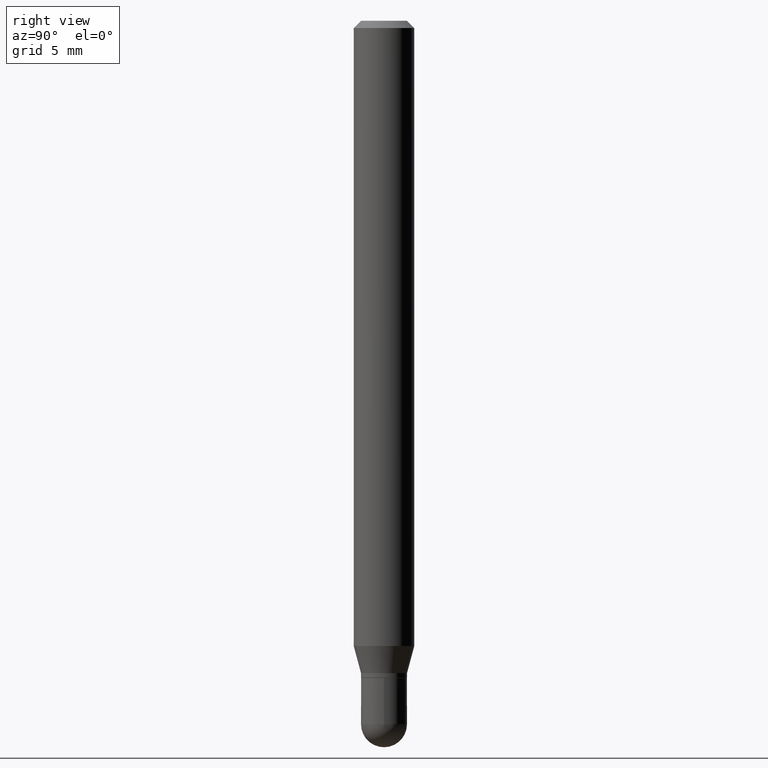
[diagram: clean part render]
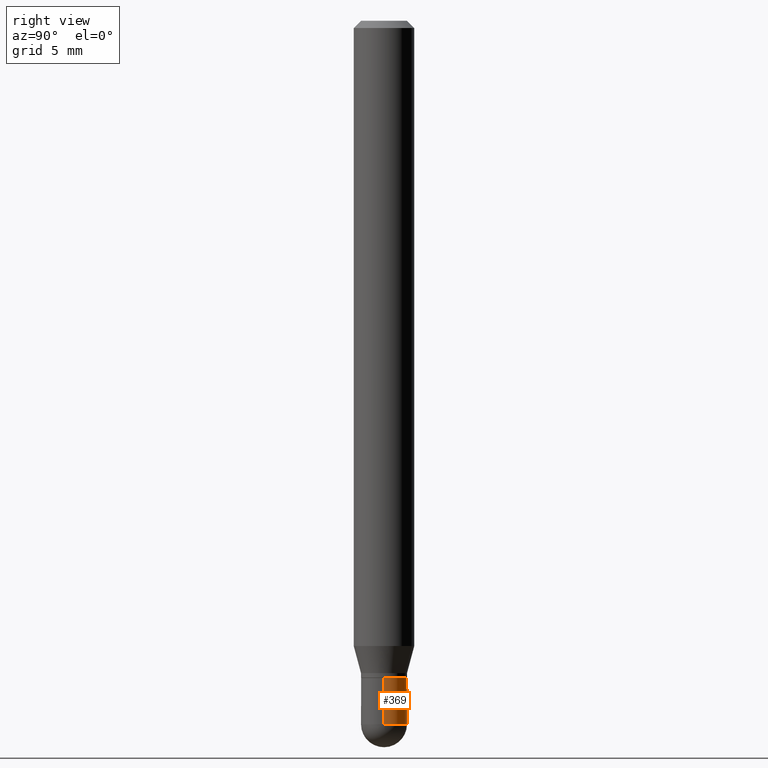
[diagram: same view with one face highlighted and labeled with its STEP entity id]
A machine part, right view. The second image highlights one B-rep face of the part: STEP entity #369.
In plain terms, the highlighted cylindrical surface (edge-blend (fillet) strip) has radius 1.2065 mm, axis along (-0, 0, 1).
Its self-contained STEP definition (entity closure, byte-faithful):
#30 = CARTESIAN_POINT ( 'NONE',  ( 0.04750000000000000749, -5.236349137930007031E-15, -1.452500000000000346 ) ) ;
#91 = CIRCLE ( 'NONE', #291, 0.04750000000000000749 ) ;
#97 = DIRECTION ( 'NONE',  ( 1.000000000000000000, -6.982962677686260400E-15, 0.000000000000000000 ) ) ;
#98 = ORIENTED_EDGE ( 'NONE', *, *, #459, .F. ) ;
#107 = DIRECTION ( 'NONE',  ( 1.000000000000000000, -6.982962677686261977E-15, 0.000000000000000000 ) ) ;
#121 = LINE ( 'NONE', #439, #343 ) ;
#135 = VERTEX_POINT ( 'NONE', #497 ) ;
#142 = CYLINDRICAL_SURFACE ( 'NONE', #397, 0.04750000000000000749 ) ;
#146 = CARTESIAN_POINT ( 'NONE',  ( 3.552043440983912297E-29, -5.071376644669670605E-15, -1.452500000000000346 ) ) ;
#176 = EDGE_LOOP ( 'NONE', ( #363, #330, #206, #98, #443 ) ) ;
#178 = FACE_OUTER_BOUND ( 'NONE', #176, .T. ) ;
#185 = DIRECTION ( 'NONE',  ( -2.445468806185136877E-29, 3.491481338843145188E-15, 1.000000000000000000 ) ) ;
#191 = LINE ( 'NONE', #260, #239 ) ;
#198 = CARTESIAN_POINT ( 'NONE',  ( -0.04750000000000000749, -4.567150611253862815E-15, -1.452500000000000346 ) ) ;
#206 = ORIENTED_EDGE ( 'NONE', *, *, #235, .F. ) ;
#217 = CARTESIAN_POINT ( 'NONE',  ( 3.318501169993230375E-29, -4.737940176810148435E-15, -1.356999999999999984 ) ) ;
#230 = CARTESIAN_POINT ( 'NONE',  ( 3.552043440983912297E-29, -5.071376644669670605E-15, -1.452500000000000346 ) ) ;
#233 = DIRECTION ( 'NONE',  ( -2.445468806185136877E-29, 3.491481338843145188E-15, 1.000000000000000000 ) ) ;
#235 = EDGE_CURVE ( 'NONE', #297, #135, #406, .T. ) ;
#239 = VECTOR ( 'NONE', #185, 39.37007874015748143 ) ;
#260 = CARTESIAN_POINT ( 'NONE',  ( -0.04750000000000000749, 3.375077994860476415E-16, -2.336494167871080260E-30 ) ) ;
#280 = CARTESIAN_POINT ( 'NONE',  ( 3.375077994860835347E-16, 0.04749999999999498373, -1.452500000000000790 ) ) ;
#286 = EDGE_CURVE ( 'NONE', #484, #135, #191, .T. ) ;
#291 = AXIS2_PLACEMENT_3D ( 'NONE', #146, #382, #97 ) ;
#297 = VERTEX_POINT ( 'NONE', #380 ) ;
#299 = DIRECTION ( 'NONE',  ( -2.445468806185136597E-29, 3.491481338843145583E-15, 1.000000000000000000 ) ) ;
#313 = AXIS2_PLACEMENT_3D ( 'NONE', #230, #512, #389 ) ;
#320 = EDGE_CURVE ( 'NONE', #455, #484, #91, .T. ) ;
#330 = ORIENTED_EDGE ( 'NONE', *, *, #286, .T. ) ;
#342 = DIRECTION ( 'NONE',  ( -2.445468806185136597E-29, 3.491481338843145583E-15, 1.000000000000000000 ) ) ;
#343 = VECTOR ( 'NONE', #233, 39.37007874015748143 ) ;
#363 = ORIENTED_EDGE ( 'NONE', *, *, #320, .T. ) ;
#369 = ADVANCED_FACE ( 'NONE', ( #178 ), #142, .T. ) ;
#380 = CARTESIAN_POINT ( 'NONE',  ( 0.04749999999999999362, -5.069630904000245946E-15, -1.356999999999999984 ) ) ;
#382 = DIRECTION ( 'NONE',  ( -2.445468806185136597E-29, 3.491481338843145583E-15, 1.000000000000000000 ) ) ;
#383 = CIRCLE ( 'NONE', #313, 0.04750000000000000749 ) ;
#389 = DIRECTION ( 'NONE',  ( 1.000000000000000000, -6.982962677686260400E-15, 0.000000000000000000 ) ) ;
#397 = AXIS2_PLACEMENT_3D ( 'NONE', #500, #299, #424 ) ;
#404 = VERTEX_POINT ( 'NONE', #30 ) ;
#406 = CIRCLE ( 'NONE', #467, 0.04749999999999999362 ) ;
#424 = DIRECTION ( 'NONE',  ( 1.000000000000000000, -6.982962677686266711E-15, 4.876176775795934672E-29 ) ) ;
#439 = CARTESIAN_POINT ( 'NONE',  ( 0.04750000000000000749, -3.316907271900977082E-16, 2.316183968503069432E-30 ) ) ;
#443 = ORIENTED_EDGE ( 'NONE', *, *, #470, .T. ) ;
#455 = VERTEX_POINT ( 'NONE', #280 ) ;
#459 = EDGE_CURVE ( 'NONE', #404, #297, #121, .T. ) ;
#467 = AXIS2_PLACEMENT_3D ( 'NONE', #217, #342, #107 ) ;
#470 = EDGE_CURVE ( 'NONE', #404, #455, #383, .T. ) ;
#484 = VERTEX_POINT ( 'NONE', #198 ) ;
#497 = CARTESIAN_POINT ( 'NONE',  ( -0.04749999999999999362, -4.567150611253862815E-15, -1.356999999999999984 ) ) ;
#500 = CARTESIAN_POINT ( 'NONE',  ( 0.000000000000000000, 0.000000000000000000, 0.000000000000000000 ) ) ;
#512 = DIRECTION ( 'NONE',  ( -2.445468806185136597E-29, 3.491481338843145583E-15, 1.000000000000000000 ) ) ;